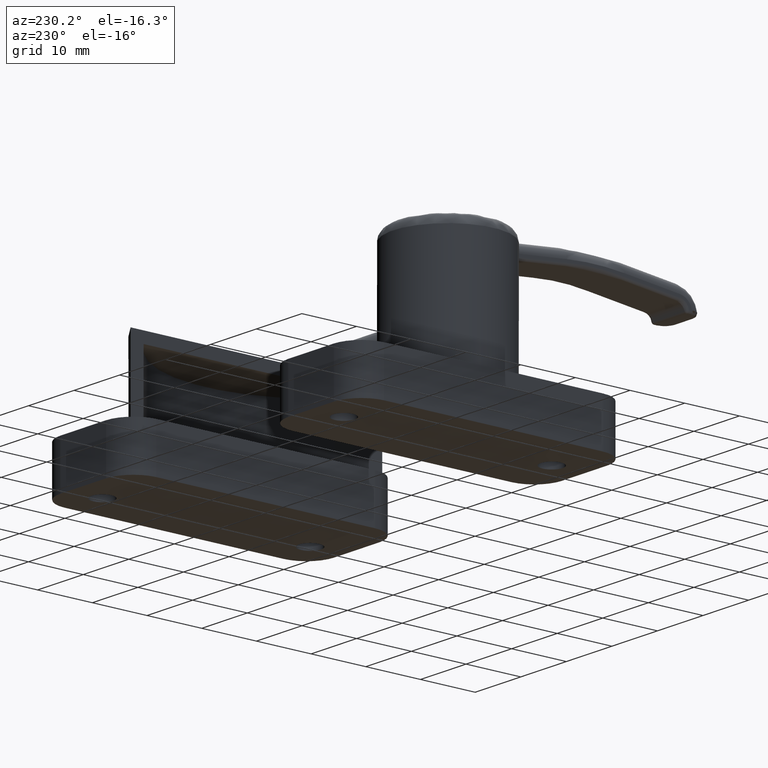
[diagram: clean part render]
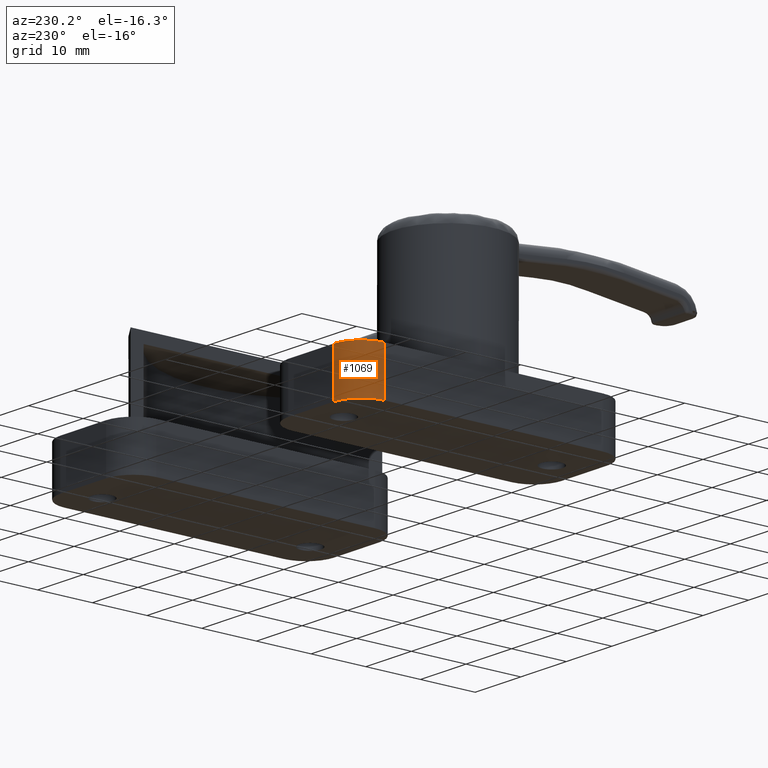
[diagram: same view with one face highlighted and labeled with its STEP entity id]
A machine part, auxiliary view. The second image highlights one B-rep face of the part: STEP entity #1069.
In plain terms, the highlighted cylindrical surface (edge-blend (fillet) strip) has radius 5 mm, axis along (0, 0, -1).
Its self-contained STEP definition (entity closure, byte-faithful):
#755=CARTESIAN_POINT('',(2.449294E-015,20.0,0.0));
#756=VERTEX_POINT('',#755);
#757=CARTESIAN_POINT('',(5.000000000000003,25.0,0.0));
#758=VERTEX_POINT('',#757);
#759=CARTESIAN_POINT('',(5.000000000000003,20.0,0.0));
#760=DIRECTION('',(0.0,0.0,-1.0));
#761=DIRECTION('',(-1.0,1.224647E-016,0.0));
#762=AXIS2_PLACEMENT_3D('',#759,#760,#761);
#763=CIRCLE('',#762,5.0);
#764=EDGE_CURVE('',#756,#758,#763,.T.);
#903=CARTESIAN_POINT('',(2.449294E-015,20.0,8.500000000000000));
#904=VERTEX_POINT('',#903);
#946=CARTESIAN_POINT('',(5.000000000000003,25.0,8.500000000000000));
#947=VERTEX_POINT('',#946);
#954=CARTESIAN_POINT('',(5.000000000000003,20.0,8.500000000000000));
#955=DIRECTION('',(0.0,0.0,-1.0));
#956=DIRECTION('',(-1.0,1.224647E-016,0.0));
#957=AXIS2_PLACEMENT_3D('',#954,#955,#956);
#958=CIRCLE('',#957,5.0);
#959=EDGE_CURVE('',#904,#947,#958,.T.);
#1048=CARTESIAN_POINT('',(5.000000000000003,20.0,8.500000010000001));
#1049=DIRECTION('',(0.0,0.0,-1.0));
#1050=DIRECTION('',(0.707106781186547,-0.707106781186548,0.0));
#1051=AXIS2_PLACEMENT_3D('',#1048,#1049,#1050);
#1052=CYLINDRICAL_SURFACE('',#1051,5.0);
#1053=ORIENTED_EDGE('',*,*,#959,.T.);
#1054=CARTESIAN_POINT('',(5.000000000000003,25.0,8.500000000000000));
#1055=DIRECTION('',(0.0,0.0,-1.0));
#1056=VECTOR('',#1055,8.500000000000000);
#1057=LINE('',#1054,#1056);
#1058=EDGE_CURVE('',#947,#758,#1057,.T.);
#1059=ORIENTED_EDGE('',*,*,#1058,.T.);
#1060=ORIENTED_EDGE('',*,*,#764,.F.);
#1061=CARTESIAN_POINT('',(2.449294E-015,20.0,8.500000000000000));
#1062=DIRECTION('',(0.0,0.0,-1.0));
#1063=VECTOR('',#1062,8.500000000000000);
#1064=LINE('',#1061,#1063);
#1065=EDGE_CURVE('',#904,#756,#1064,.T.);
#1066=ORIENTED_EDGE('',*,*,#1065,.F.);
#1067=EDGE_LOOP('',(#1053,#1059,#1060,#1066));
#1068=FACE_OUTER_BOUND('',#1067,.T.);
#1069=ADVANCED_FACE('',(#1068),#1052,.T.);